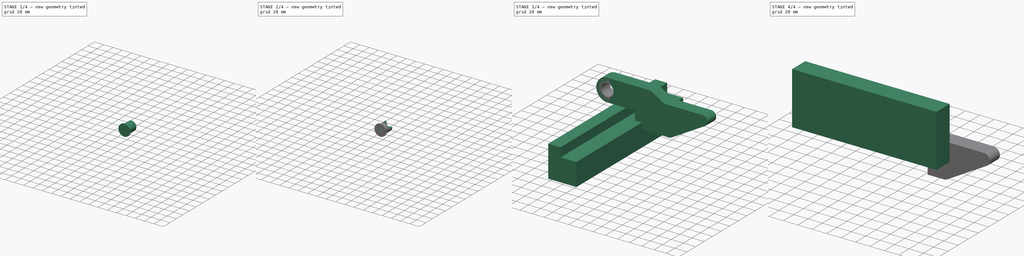
[diagram: build sequence overview — one tinted view per stage of 4, left to right]
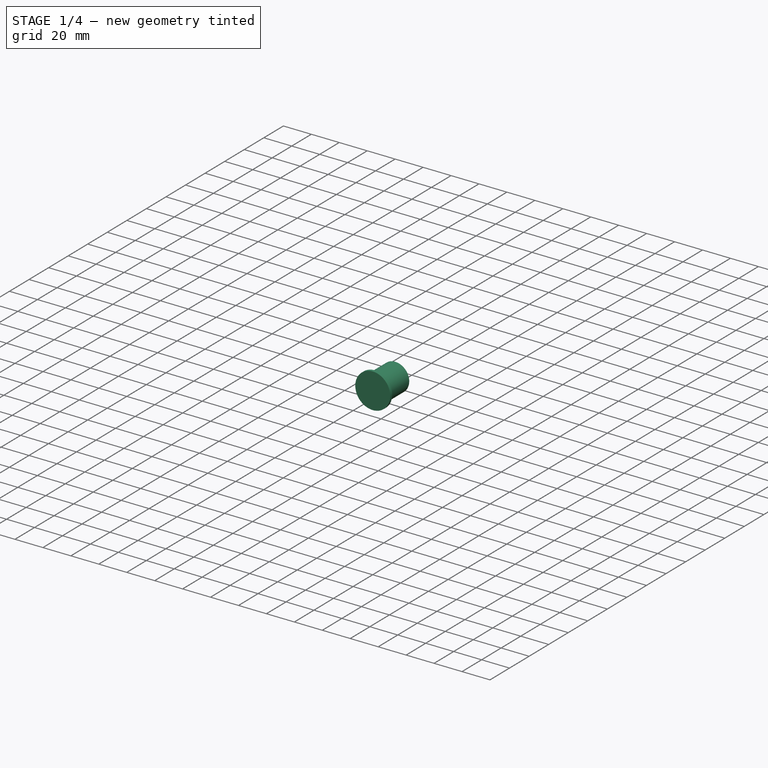
[diagram: stage 1 of 4 — iso view after this stage's code; geometry added in this stage tinted green]
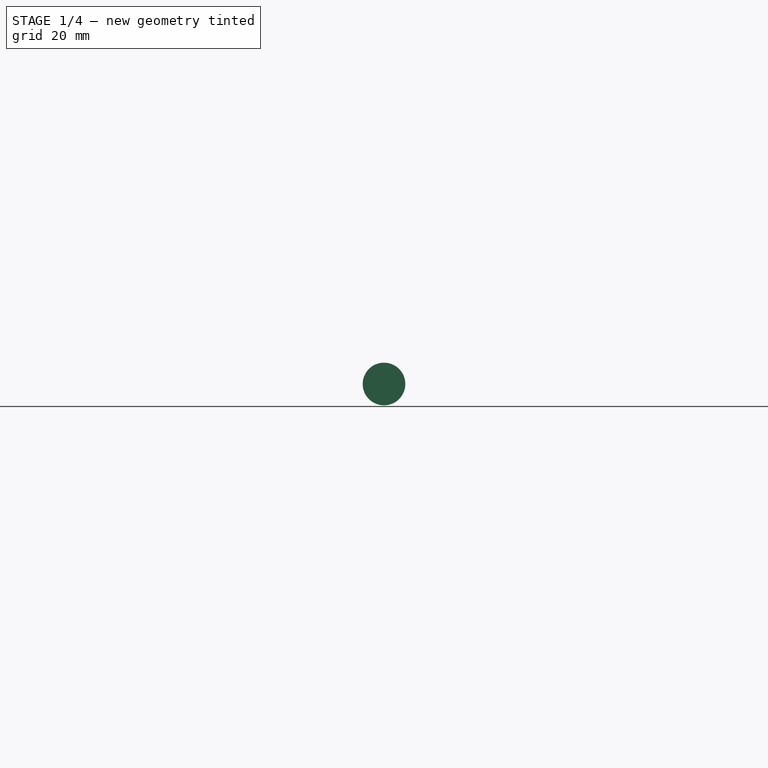
[diagram: stage 1 of 4 — front view after this stage's code; geometry added in this stage tinted green]
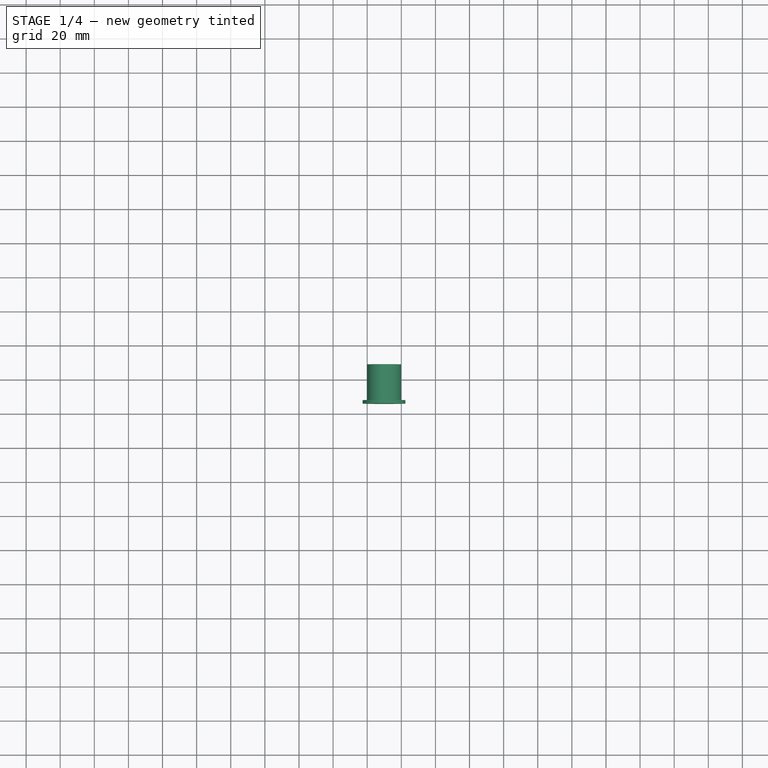
[diagram: stage 1 of 4 — top view after this stage's code; geometry added in this stage tinted green]
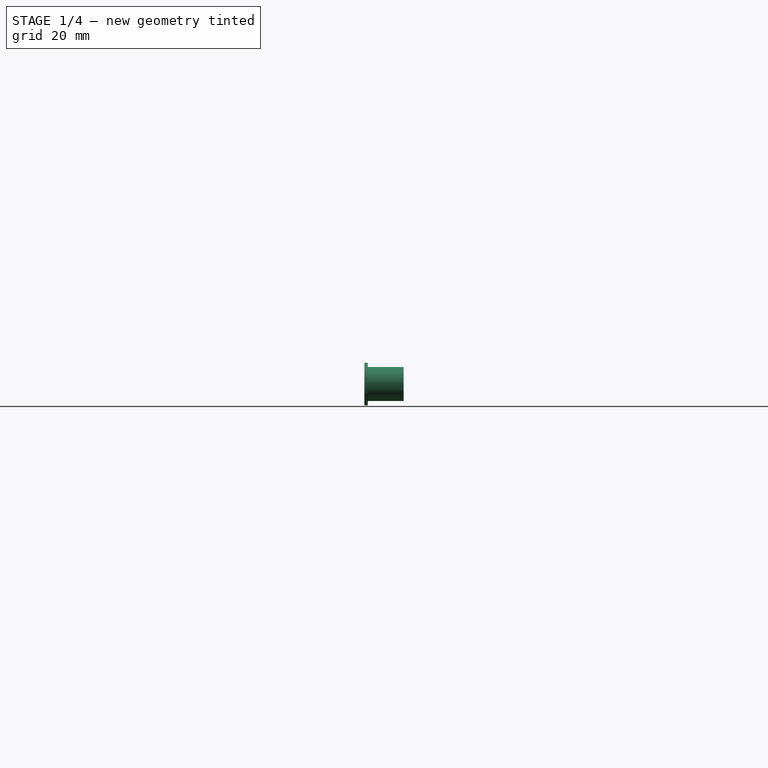
[diagram: stage 1 of 4 — right view after this stage's code; geometry added in this stage tinted green]
FCSTD DOCUMENT  (FreeCAD 0.19R20310 (Git))
Label: halter
License: All rights reserved
LicenseURL: http://en.wikipedia.org/wiki/All_rights_reserved
objects: Sketcher::SketchObject×8, PartDesign::Pad×5, PartDesign::Body×4, PartDesign::Pocket×3, PartDesign::ShapeBinder×1, Part::Cut×1
note: 30 computed .brp shape members not serialized (recipe doc carries the construction recipe); baked Part::Feature solids carry a one-line shape summary decoded from their .brp

FEATURE [PartDesign::Body] Body001  label="Balken"
  Group = -> [Sketch001,Pad001]
  Origin = -> Origin001
  Placement = pos=(0,0,0) rot=(0,-1,0;0.39619rad)
  Tip = -> Pad001
FEATURE [Sketcher::SketchObject] Sketch009
  MapMode = 5
  Placement = pos=(0,26,-1.5e-14) rot=(-1,0,0;1.5708rad)
  sketch-geometry (1):
    g0: Circle CenterX=-10.1462 CenterY=-18.2665 CenterZ=0 NormalX=0 NormalY=0 NormalZ=1 AngleXU=0 Radius=12.5
  constraints (1):
    c: Diameter(g0) = 25
FEATURE [PartDesign::Pad] Pad005
  Length = 2
  Length2 = 100
  Placement = pos=(0,26,-1.5e-14) rot=(-1,0,0;1.5708rad)
  Profile = -> Sketch009
  Type = 0
FEATURE [Sketcher::SketchObject] Sketch010
  ExternalGeometry = -> [Pad005]
  MapMode = 5
  Placement = pos=(0,28,-1.43e-14) rot=(-1,0,0;1.5708rad)
  Support = -> [Pad005]
  sketch-geometry (1):
    g0: Circle CenterX=-10.1462 CenterY=-18.2665 CenterZ=0 NormalX=0 NormalY=0 NormalZ=1 AngleXU=0 Radius=10
  constraints (2):
    c: Coincident(g0,g-3)
    c: Diameter(g0) = 20
FEATURE [PartDesign::Pad] Pad006
  BaseFeature = -> Pad005
  Length = 21
  Length2 = 100
  Placement = pos=(0,26,-1.5e-14) rot=(-1,0,0;1.5708rad)
  Profile = -> Sketch010
  Type = 0
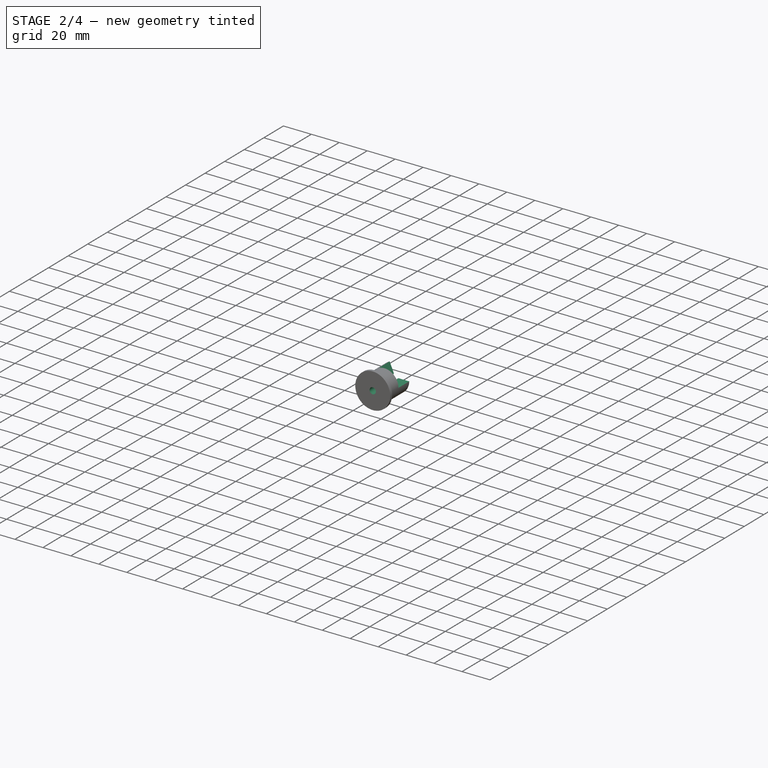
[diagram: stage 2 of 4 — iso view after this stage's code; geometry added in this stage tinted green]
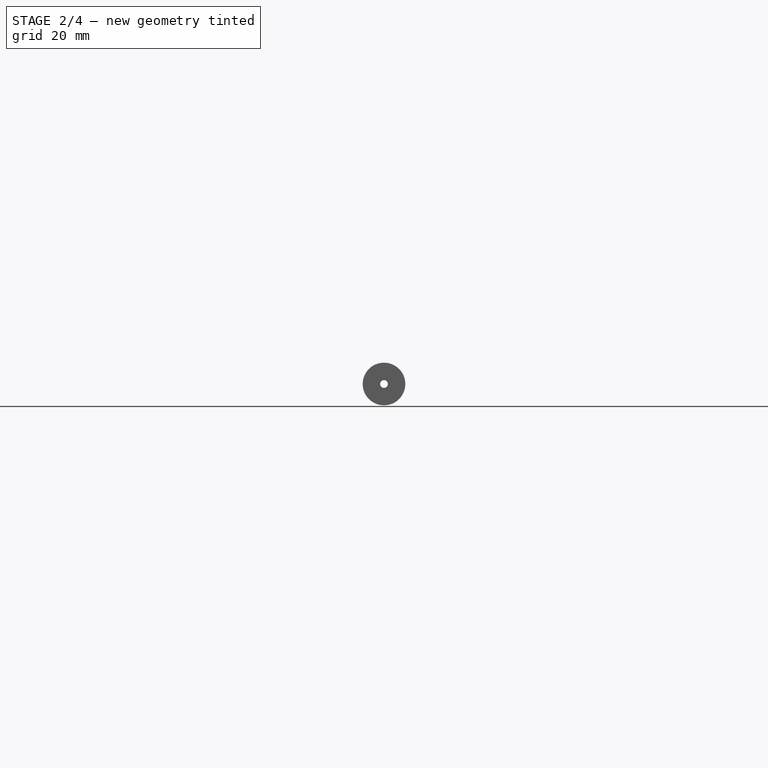
[diagram: stage 2 of 4 — front view after this stage's code; geometry added in this stage tinted green]
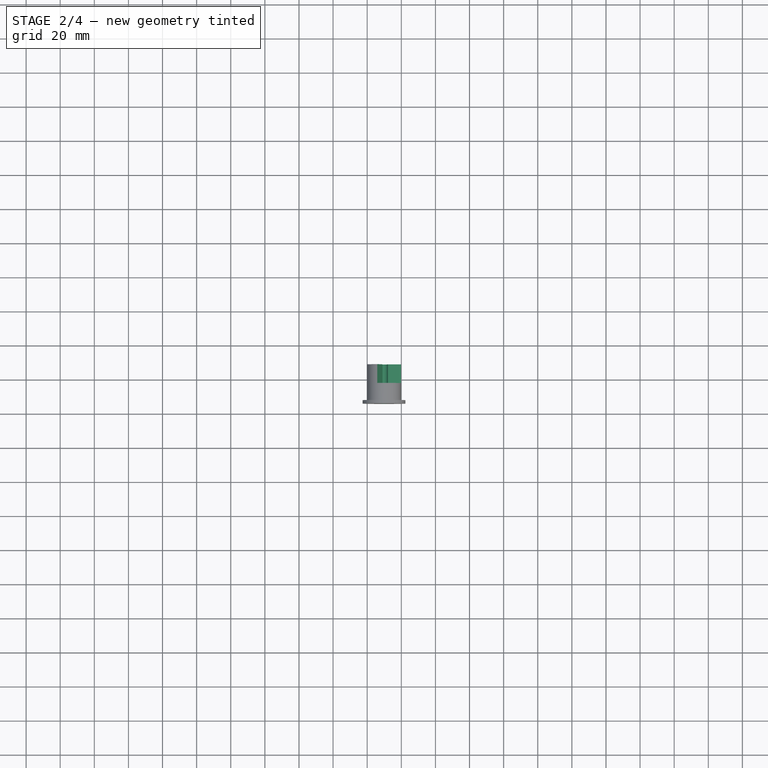
[diagram: stage 2 of 4 — top view after this stage's code; geometry added in this stage tinted green]
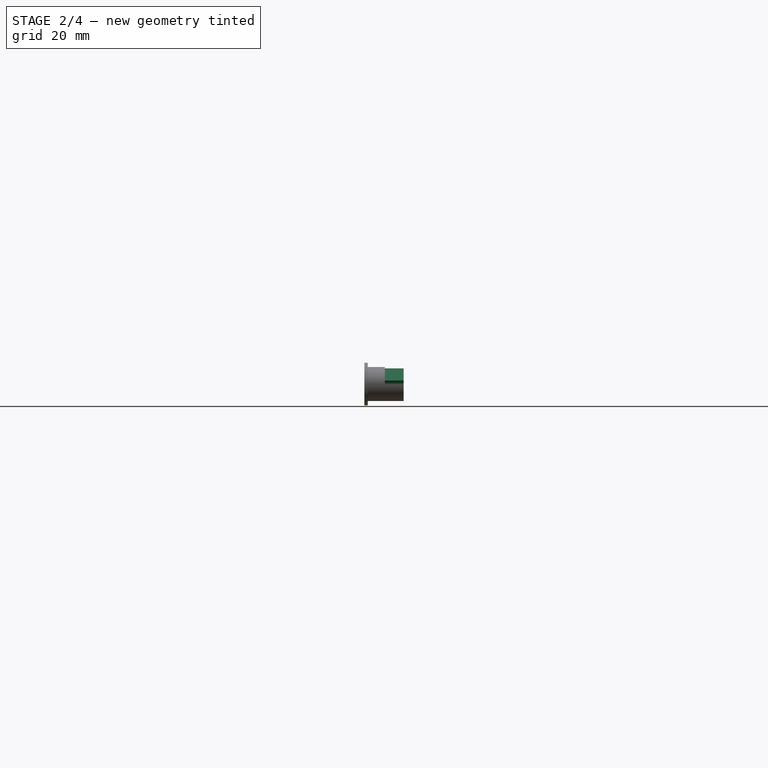
[diagram: stage 2 of 4 — right view after this stage's code; geometry added in this stage tinted green]
FEATURE [Sketcher::SketchObject] Sketch011
  ExternalGeometry = -> [Pad006]
  MapMode = 5
  Placement = pos=(0,49,-5.6e-15) rot=(-1,0,0;1.5708rad)
  Support = -> [Pad006]
  sketch-geometry (1):
    g0: Circle CenterX=-10.1462 CenterY=-18.2665 CenterZ=0 NormalX=0 NormalY=0 NormalZ=1 AngleXU=0 Radius=2.25
  constraints (2):
    c: Coincident(g0,g-3)
    c: Diameter(g0) = 4.5
FEATURE [PartDesign::Pocket] Pocket
  BaseFeature = -> Pad006
  Length = 0
  Length2 = 100
  Placement = pos=(0,26,-1.5e-14) rot=(-1,0,0;1.5708rad)
  Profile = -> Sketch011
  Type = 3
  UpToFace = -> Pad006 [Face2]
FEATURE [Sketcher::SketchObject] Sketch012
  ExternalGeometry = -> [Pocket]
  MapMode = 5
  Placement = pos=(0,49,-5.6e-15) rot=(-1,0,0;1.5708rad)
  Support = -> [Pocket]
  sketch-geometry (3):
    g0: ArcOfCircle CenterX=-10.1462 CenterY=-18.2665 CenterZ=0 NormalX=0 NormalY=0 NormalZ=1 AngleXU=0 Radius=10 StartAngle=4.3023 EndAngle=6.28319
    g1: LineSegment StartX=-10.1462 StartY=-18.2665 StartZ=0 EndX=-0.146176 EndY=-18.2665 EndZ=0
    g2: LineSegment StartX=-10.1462 StartY=-18.2665 StartZ=0 EndX=-14.1331 EndY=-27.4373 EndZ=0
  constraints (7):
    c: Coincident(g0,g-3)
    c: PointOnObject(g0,g-3)
    c: Coincident(g1,g0)
    c: Coincident(g1,g0)
    c: Horizontal(g1)
    c: Coincident(g2,g0)
    c: Coincident(g2,g0)
FEATURE [PartDesign::Pocket] Pocket001
  BaseFeature = -> Pocket
  Length = 11
  Length2 = 100
  Placement = pos=(0,26,-1.5e-14) rot=(-1,0,0;1.5708rad)
  Profile = -> Sketch012
  Type = 0
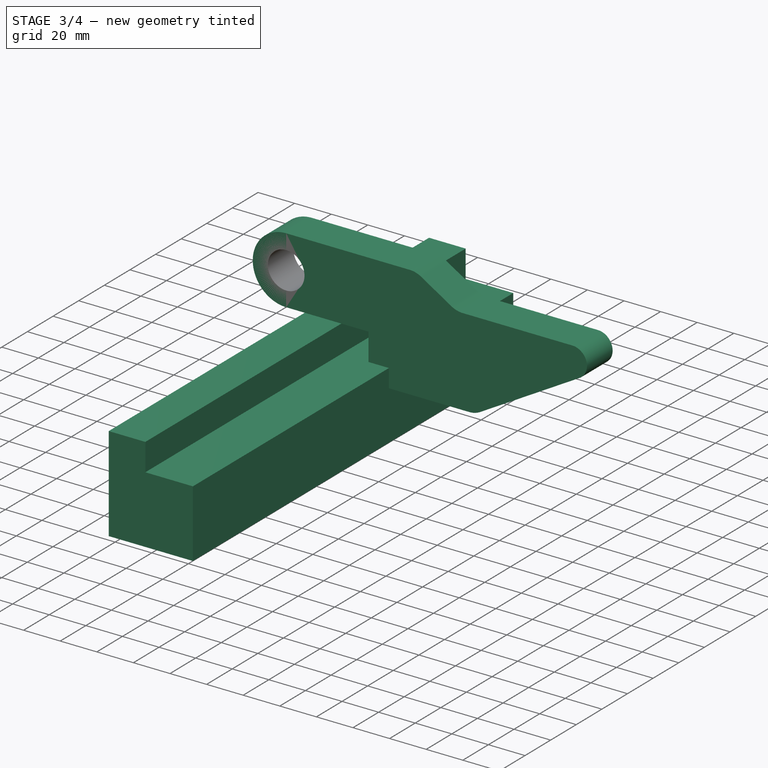
[diagram: stage 3 of 4 — iso view after this stage's code; geometry added in this stage tinted green]
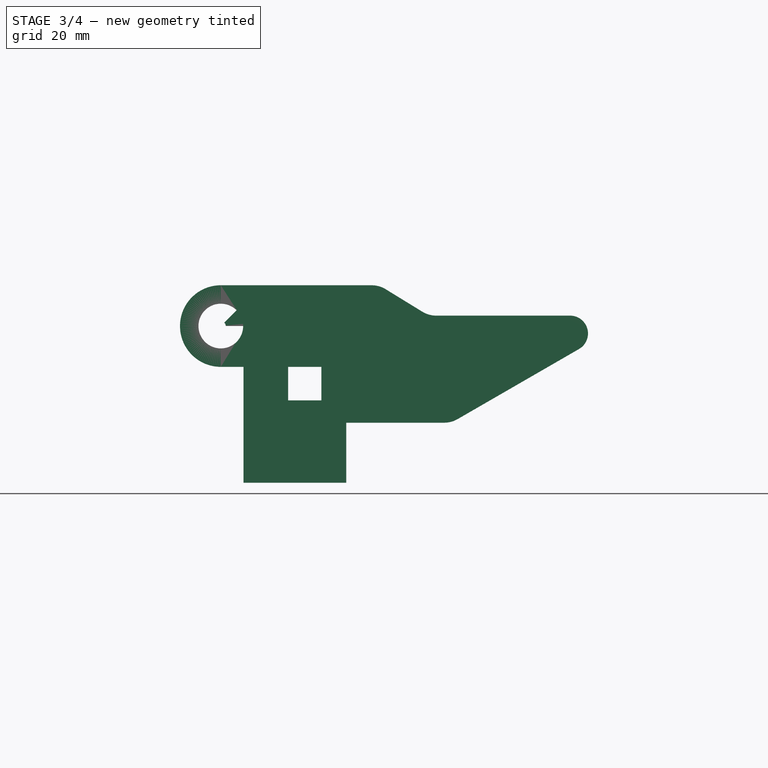
[diagram: stage 3 of 4 — front view after this stage's code; geometry added in this stage tinted green]
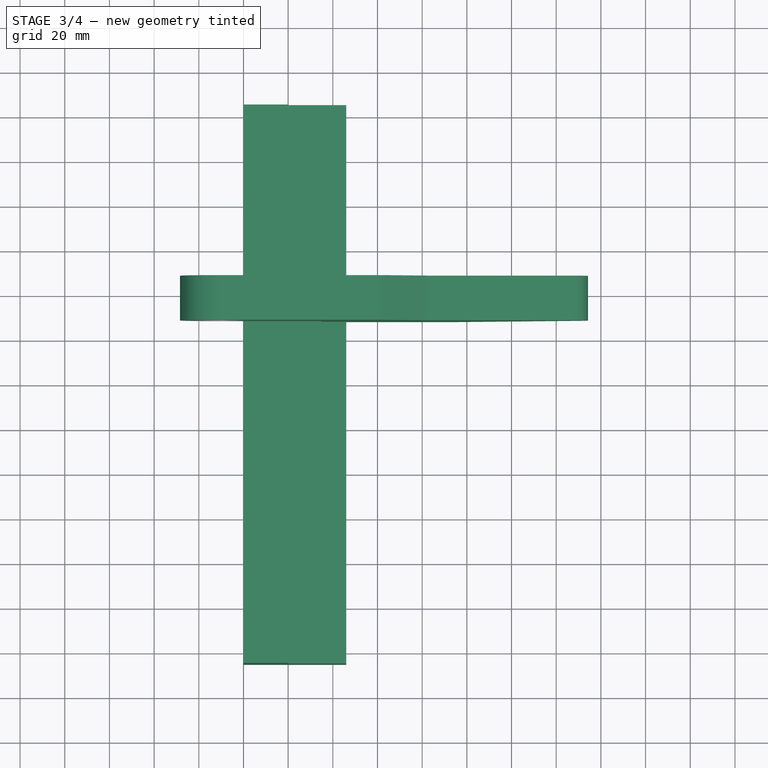
[diagram: stage 3 of 4 — top view after this stage's code; geometry added in this stage tinted green]
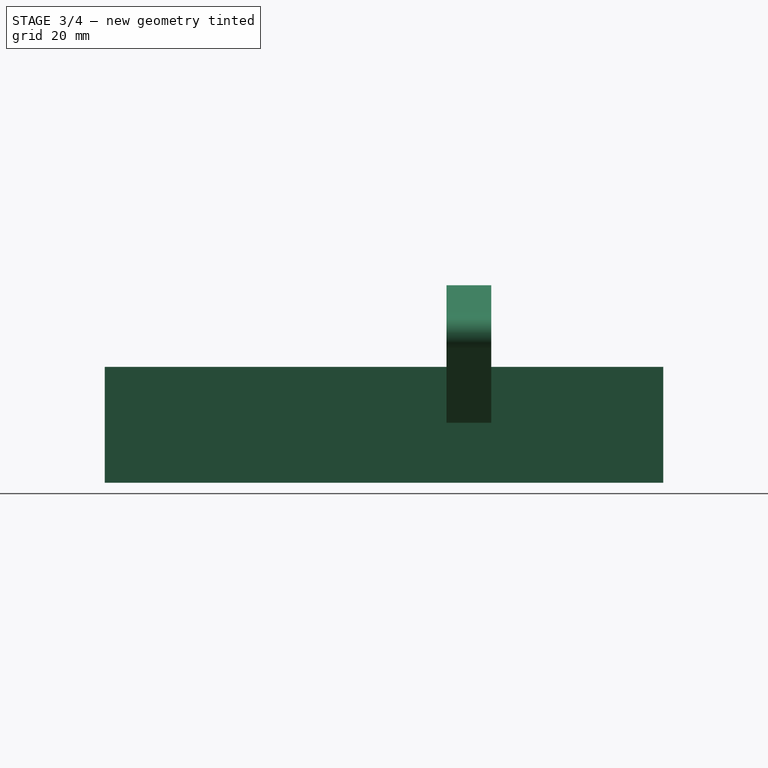
[diagram: stage 3 of 4 — right view after this stage's code; geometry added in this stage tinted green]
FEATURE [Sketcher::SketchObject] Sketch
  MapMode = 5
  Placement = pos=(0,0,0) rot=(1,0,0;1.5708rad)
  Support = -> [XZ_Plane]
  sketch-geometry (6):
    g0: LineSegment StartX=0 StartY=0 StartZ=0 EndX=20 EndY=0 EndZ=0
    g1: LineSegment StartX=20 StartY=0 StartZ=0 EndX=20 EndY=-15 EndZ=0
    g2: LineSegment StartX=20 StartY=-15 StartZ=0 EndX=46 EndY=-15 EndZ=0
    g3: LineSegment StartX=46 StartY=-15 StartZ=0 EndX=46 EndY=-51.8785 EndZ=0
    g4: LineSegment StartX=46 StartY=-51.8785 StartZ=0 EndX=0 EndY=-51.8785 EndZ=0
    g5: LineSegment StartX=0 StartY=-51.8785 StartZ=0 EndX=0 EndY=0 EndZ=0
  constraints (16):
    c: Horizontal(g0)
    c: Coincident(g0,g1)
    c: Vertical(g1)
    c: Coincident(g1,g2)
    c: Horizontal(g2)
    c: Coincident(g2,g3)
    c: Vertical(g3)
    c: Coincident(g3,g4)
    c: Horizontal(g4)
    c: Coincident(g4,g5)
    c: Coincident(g5,g0)
    c: Vertical(g5)
    c: Coincident(g0,g-1)
    c: DistanceX(g0,g0) = 20
    c: DistanceX(g1,g2) = 26
    c: DistanceY(g1,g0) = 15
FEATURE [PartDesign::Pad] Pad
  Length = 250
  Length2 = 100
  Midplane = true
  Placement = pos=(0,0,0) rot=(1,0,0;1.5708rad)
  Profile = -> Sketch
  Type = 0
FEATURE [PartDesign::Body] Body004  label="Base"
  Group = -> [Sketch009,Pad005,Sketch010,Pad006,Sketch011,Pocket,Sketch012,Pocket001]
  Origin = -> Origin004
  Tip = -> Pocket001
FEATURE [PartDesign::ShapeBinder] ShapeBinder
  Support = -> [Pocket001]
  TraceSupport = true
FEATURE [Sketcher::SketchObject] Sketch006  label="aussen"
  AttachmentOffset = pos=(0,0,28) rot=(0,0,1;0rad)
  ExternalGeometry = -> [ShapeBinder]
  MapMode = 5
  Placement = pos=(0,28,6.2e-15) rot=(0,0.707107,0.707107;3.14159rad)
  Support = -> [XZ_Plane002]
  sketch-geometry (17):
    g0: LineSegment StartX=-95.8538 StartY=-23.3923 StartZ=0 EndX=-150.227 EndY=8 EndZ=0
    g1: ArcOfCircle CenterX=-146.227 CenterY=14.9282 CenterZ=0 NormalX=0 NormalY=0 NormalZ=1 AngleXU=0 Radius=8 StartAngle=1.5708 EndAngle=4.18879
    g2: LineSegment StartX=-34.8538 StartY=-25 StartZ=0 EndX=-34.8538 EndY=0 EndZ=0
    g3: LineSegment StartX=-34.8538 StartY=0 StartZ=0 EndX=10.1462 EndY=0 EndZ=0
    g4: ArcOfCircle CenterX=10.1462 CenterY=18.2665 CenterZ=0 NormalX=0 NormalY=0 NormalZ=1 AngleXU=0 Radius=18.2665 StartAngle=4.71239 EndAngle=7.85398
    g5: ArcOfCircle CenterX=10.1462 CenterY=18.2665 CenterZ=0 NormalX=0 NormalY=0 NormalZ=1 AngleXU=0 Radius=10 StartAngle=3.14159 EndAngle=8.63938
    g6: LineSegment StartX=0.146176 StartY=18.2665 StartZ=0 EndX=7.93764 EndY=18.2675 EndZ=0
    g7: LineSegment StartX=8.5845 StartY=19.8282 StartZ=0 EndX=3.07511 EndY=25.3376 EndZ=0
    g8: LineSegment [constr] StartX=3.07511 StartY=25.3376 StartZ=0 EndX=10.1462 EndY=18.2665 EndZ=0
    g9: ArcOfCircle CenterX=10.1462 CenterY=18.2665 CenterZ=0 NormalX=0 NormalY=0 NormalZ=1 AngleXU=0 Radius=2.20854 StartAngle=2.35619 EndAngle=3.14115
    g10: LineSegment StartX=-89.8538 StartY=-25 StartZ=0 EndX=-34.8538 EndY=-25 EndZ=0
    g11: LineSegment StartX=-146.227 StartY=22.9282 StartZ=0 EndX=-86.3314 EndY=22.9282 EndZ=0
    g12: LineSegment StartX=10.1462 StartY=36.533 StartZ=0 EndX=-57.3739 EndY=36.533 EndZ=0
    g13: ArcOfCircle CenterX=-86.3314 CenterY=34.9282 CenterZ=0 NormalX=0 NormalY=0 NormalZ=1 AngleXU=0 Radius=12 StartAngle=4.71239 EndAngle=5.2625
    g14: ArcOfCircle CenterX=-57.3739 CenterY=24.533 CenterZ=0 NormalX=0 NormalY=0 NormalZ=1 AngleXU=0 Radius=12 StartAngle=1.5708 EndAngle=2.12091
    g15: LineSegment StartX=-80.0581 StartY=24.6986 StartZ=0 EndX=-63.6473 EndY=34.7626 EndZ=0
    g16: ArcOfCircle CenterX=-89.8538 CenterY=-13 CenterZ=0 NormalX=0 NormalY=0 NormalZ=1 AngleXU=0 Radius=12 StartAngle=4.18879 EndAngle=4.71239
  constraints (39):
    c: Vertical(g2)
    c: Coincident(g3,g2)
    c: Horizontal(g3)
    c: Tangent(g3,g4) = -1.5708
    c: Tangent(g1,g0) = 1.5708
    c: Angle(g0,g-1) = 0.523599
    c: Radius(g1) = 8
    c: Coincident(g5,g-4)
    c: Coincident(g5,g-3)
    c: Coincident(g6,g5)
    c: Coincident(g7,g5)
    c: Angle(g7,g-1) = 0.785398
    c: Coincident(g4,g5)
    c: Coincident(g8,g5)
    c: Coincident(g8,g4)
    c: PointOnObject(g7,g8)
    c: Coincident(g9,g4)
    c: Coincident(g9,g6)
    c: Coincident(g9,g7)
    c: PointOnObject(g3,g-1)
    c: Coincident(g10,g2)
    c: Horizontal(g10)
    c: DistanceY(g2,g2) = 25
    c: DistanceX(g2,g3) = 45
    c: Horizontal(g11)
    c: Coincident(g12,g4)
    c: Horizontal(g12)
    c: Tangent(g13,g11) = -1.5708
    c: Tangent(g11,g1) = 1.5708
    c: Tangent(g14,g12) = -1.5708
    c: Tangent(g15,g14) = 1.5708
    c: Tangent(g15,g13) = -1.5708
    c: Radius(g14) = 12
    c: Radius(g13) = 12
    c: Tangent(g16,g10) = -1.5708
    c: Tangent(g16,g0) = 1.5708
    c: Radius(g16) = 12
    c: DistanceX(g10,g3) = 100
    c: DistanceY(g-1,g0) = 8
FEATURE [PartDesign::Pad] Pad004
  Length = 20
  Length2 = 100
  Placement = pos=(0,0,0) rot=(1,0,0;1.5708rad)
  Profile = -> Sketch006
  Type = 0
FEATURE [Sketcher::SketchObject] Sketch013
  ExternalGeometry = -> [ShapeBinder,Pad004]
  MapMode = 5
  Placement = pos=(-2e-16,28,6e-15) rot=(1,0,0;1.5708rad)
  Support = -> [Pad004]
  sketch-geometry (1):
    g0: Circle CenterX=-10.1462 CenterY=18.2665 CenterZ=0 NormalX=0 NormalY=0 NormalZ=1 AngleXU=0 Radius=10
  constraints (2):
    c: Coincident(g0,g-4)
    c: PointOnObject(g-4,g0)
FEATURE [PartDesign::Pocket] Pocket002
  BaseFeature = -> Pad004
  Length = 11
  Length2 = 100
  Placement = pos=(0,0,0) rot=(1,0,0;1.5708rad)
  Profile = -> Sketch013
  Type = 0
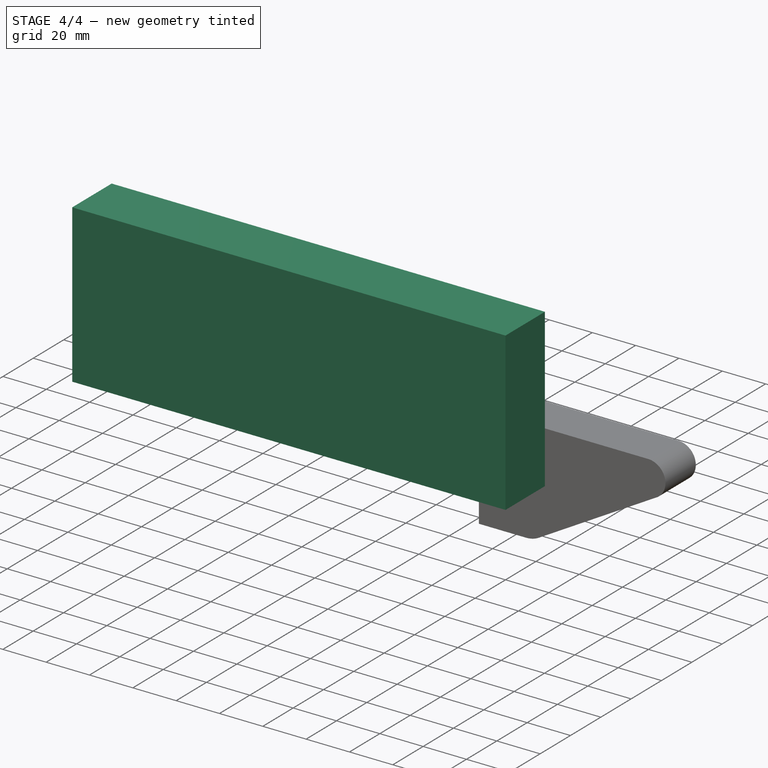
[diagram: stage 4 of 4 — iso view after this stage's code; geometry added in this stage tinted green]
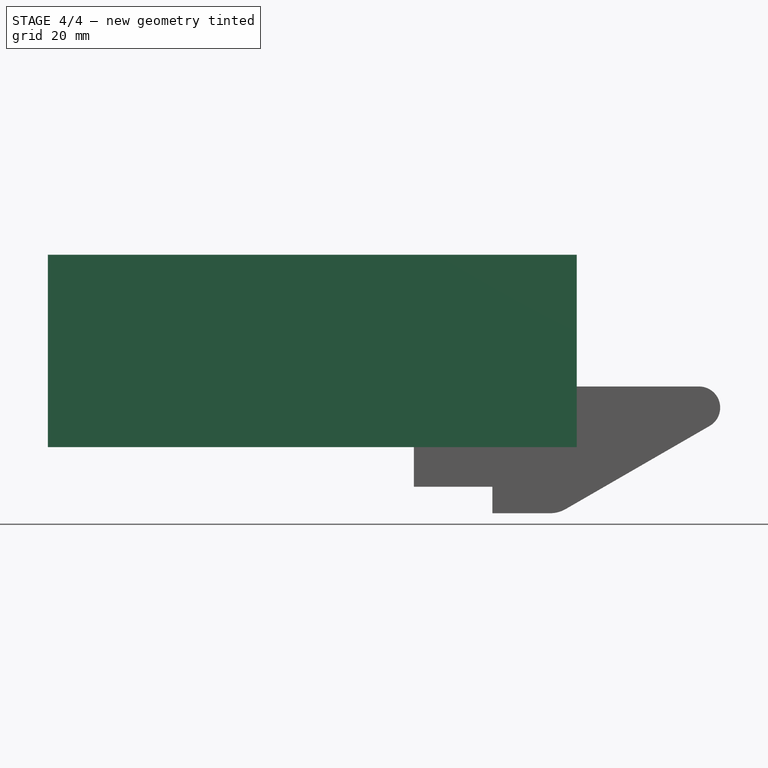
[diagram: stage 4 of 4 — front view after this stage's code; geometry added in this stage tinted green]
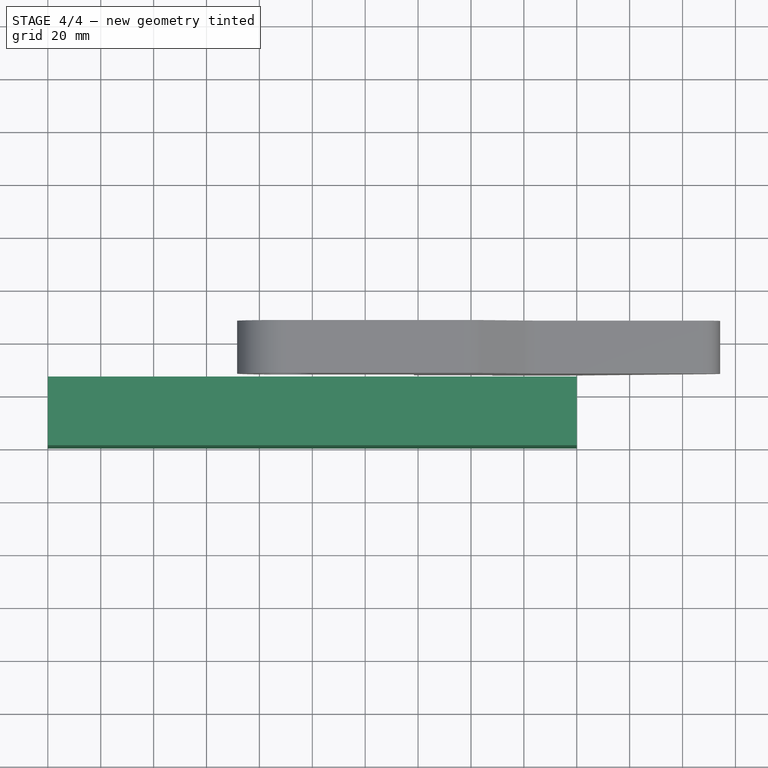
[diagram: stage 4 of 4 — top view after this stage's code; geometry added in this stage tinted green]
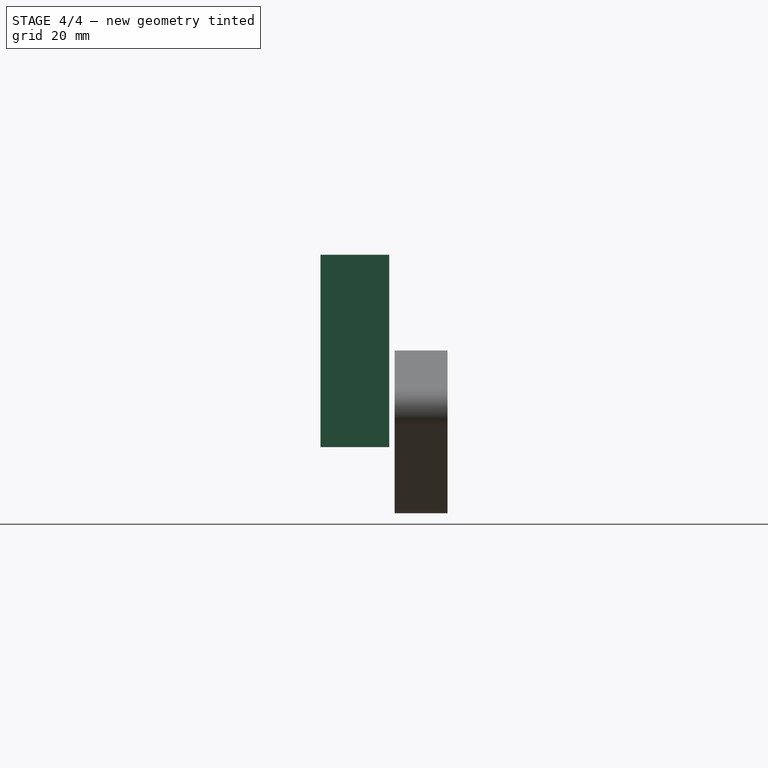
[diagram: stage 4 of 4 — right view after this stage's code; geometry added in this stage tinted green]
FEATURE [PartDesign::Body] Body  label="Tuer"
  Group = -> [Sketch,Pad]
  Origin = -> Origin
  Placement = pos=(0,0,0) rot=(0,0,-1;0.506145rad)
  Tip = -> Pad
FEATURE [Sketcher::SketchObject] Sketch001
  MapMode = 5
  Placement = pos=(0,0,0) rot=(0.57735,0.57735,0.57735;2.0944rad)
  Support = -> [YZ_Plane001]
  sketch-geometry (4):
    g0: LineSegment StartX=0 StartY=72.7344 StartZ=0 EndX=26 EndY=72.7344 EndZ=0
    g1: LineSegment StartX=26 StartY=72.7344 StartZ=0 EndX=26 EndY=0 EndZ=0
    g2: LineSegment StartX=26 StartY=0 StartZ=0 EndX=0 EndY=0 EndZ=0
    g3: LineSegment StartX=0 StartY=0 StartZ=0 EndX=0 EndY=72.7344 EndZ=0
  constraints (11):
    c: Coincident(g0,g1)
    c: Coincident(g1,g2)
    c: Coincident(g2,g3)
    c: Coincident(g3,g0)
    c: Horizontal(g0)
    c: Horizontal(g2)
    c: Vertical(g1)
    c: Vertical(g3)
    c: PointOnObject(g0,g-2)
    c: PointOnObject(g1,g-1)
    c: DistanceX(g0,g0) = 26
FEATURE [PartDesign::Pad] Pad001
  Length = 200
  Length2 = 100
  Midplane = true
  Placement = pos=(0,0,0) rot=(0.57735,0.57735,0.57735;2.0944rad)
  Profile = -> Sketch001
  Type = 0
FEATURE [PartDesign::Body] Body002  label="Riegel"
  Group = -> [Sketch006,Pad004,ShapeBinder,Sketch013,Pocket002]
  Origin = -> Origin002
  Tip = -> Pocket002
FEATURE [Part::Cut] Cut
  Base = -> Body002
  Tool = -> Body
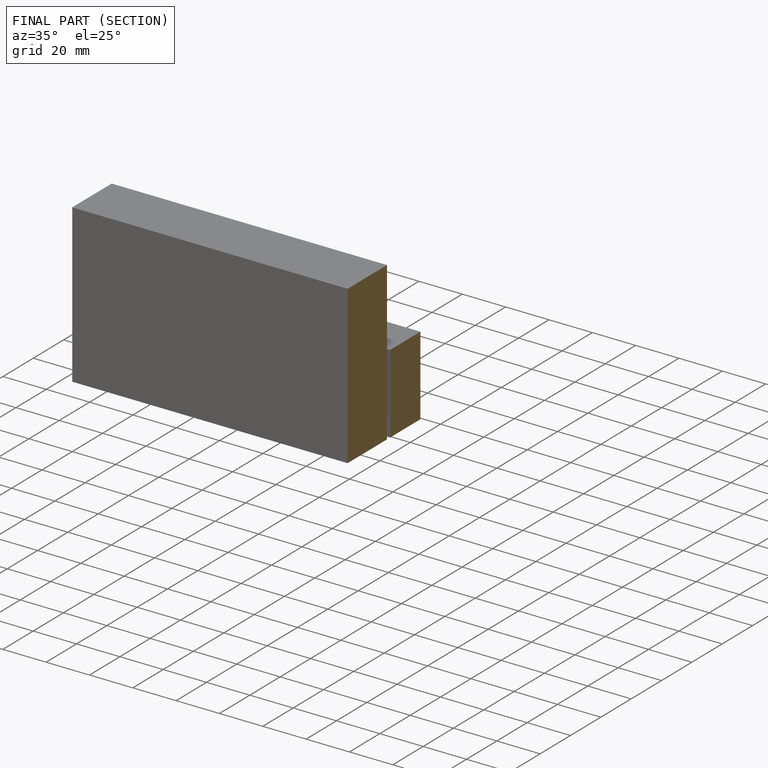
[diagram: finished part — half-section view (interior)]
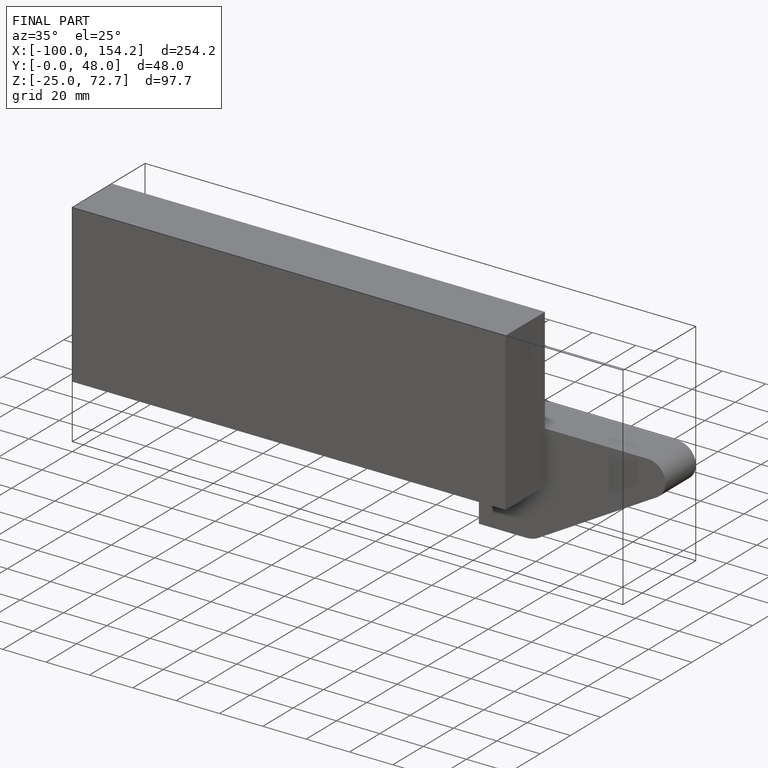
[diagram: finished part — iso view with bounding-box wireframe]
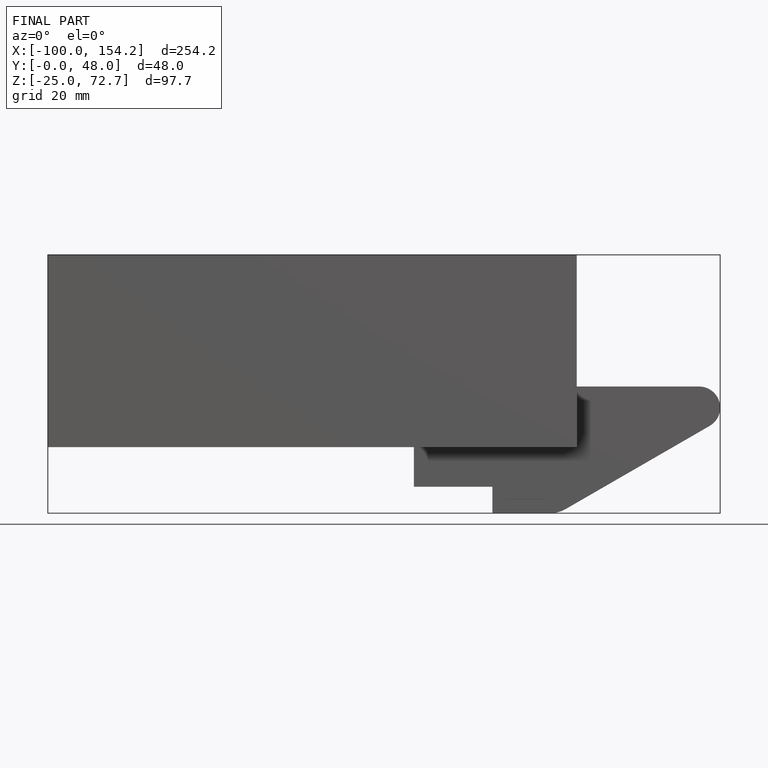
[diagram: finished part — front view with bounding-box wireframe]
